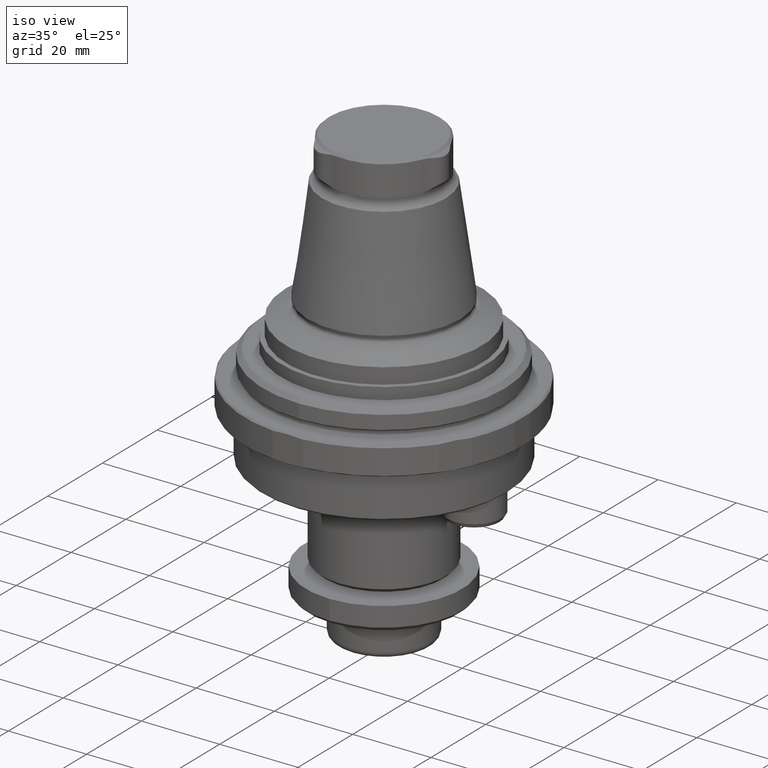
[diagram: clean part render]
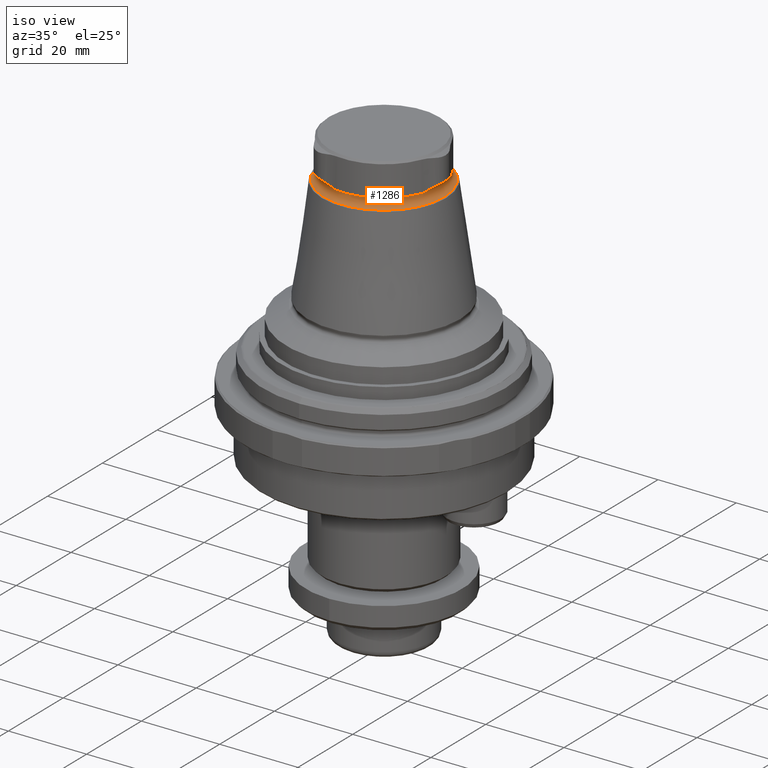
[diagram: same view with one face highlighted and labeled with its STEP entity id]
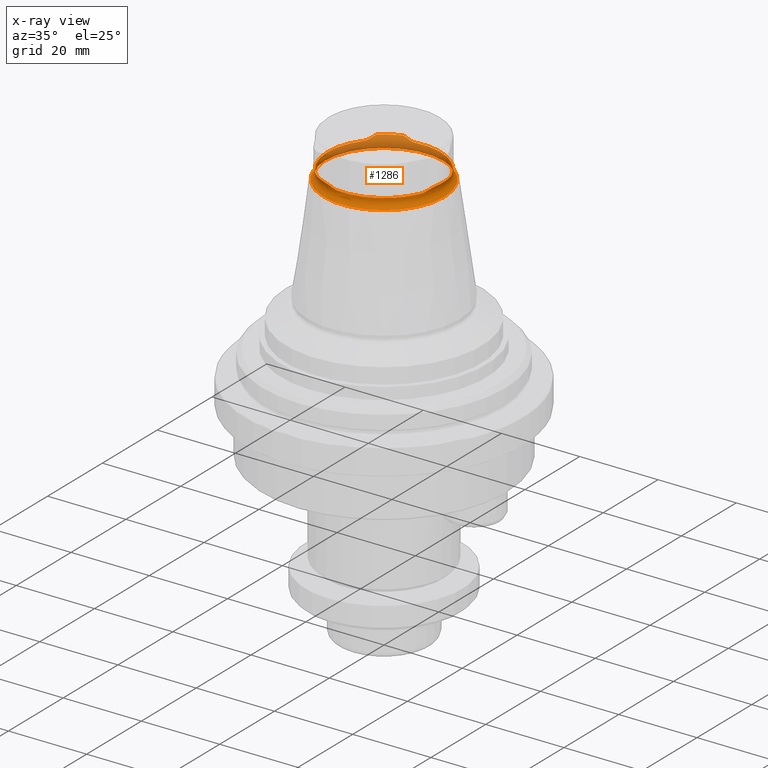
[diagram: x-ray of the same camera — body ghosted, the highlighted face saturated]
A machine part, iso view. The second image highlights one B-rep face of the part: STEP entity #1286.
The next image is the same camera in x-ray: the body ghosted, the highlighted face saturated — about 37% of this face is hidden behind the body in this view.
In plain terms, the highlighted toroidal blend (fillet) surface has major radius 16.4 mm and minor (blend) radius 2 mm.
Its self-contained STEP definition (entity closure, byte-faithful):
#26=TOROIDAL_SURFACE('',#1460,16.4,2.);
#134=B_SPLINE_CURVE_WITH_KNOTS('',3,(#2261,#2262,#2263,#2264,#2265),
 .UNSPECIFIED.,.F.,.F.,(4,1,4),(2.3253959497874E-7,0.0015389400940897,0.00307764764858442),
 .UNSPECIFIED.);
#136=B_SPLINE_CURVE_WITH_KNOTS('',3,(#2279,#2280,#2281,#2282),
 .UNSPECIFIED.,.F.,.F.,(4,4),(0.00622155540779305,0.00622754949232765),
 .UNSPECIFIED.);
#137=B_SPLINE_CURVE_WITH_KNOTS('',3,(#2283,#2284,#2285,#2286),
 .UNSPECIFIED.,.F.,.F.,(4,4),(2.12211647205004E-7,6.21085284075914E-6),
 .UNSPECIFIED.);
#138=B_SPLINE_CURVE_WITH_KNOTS('',3,(#2290,#2291,#2292,#2293,#2294),
 .UNSPECIFIED.,.F.,.F.,(4,1,4),(1.98303930943962E-7,0.00153324672622609,
0.00306629514852124),.UNSPECIFIED.);
#139=B_SPLINE_CURVE_WITH_KNOTS('',3,(#2302,#2303,#2304,#2305,#2306),
 .UNSPECIFIED.,.F.,.F.,(4,1,4),(2.57032852111142E-7,0.00153896376344887,
0.00307767049404562),.UNSPECIFIED.);
#141=B_SPLINE_CURVE_WITH_KNOTS('',3,(#2320,#2321,#2322,#2323),
 .UNSPECIFIED.,.F.,.F.,(4,4),(6.19763373146291E-7,6.61840456632411E-6),
 .UNSPECIFIED.);
#142=B_SPLINE_CURVE_WITH_KNOTS('',3,(#2324,#2325,#2326,#2327),
 .UNSPECIFIED.,.F.,.F.,(4,4),(2.57948989344727E-7,6.25659018116285E-6),
 .UNSPECIFIED.);
#143=B_SPLINE_CURVE_WITH_KNOTS('',3,(#2331,#2332,#2333,#2334,#2335),
 .UNSPECIFIED.,.F.,.F.,(4,1,4),(2.11842187331082E-7,0.0015332601506275,
0.00306630845906767),.UNSPECIFIED.);
#144=B_SPLINE_CURVE_WITH_KNOTS('',3,(#2343,#2344,#2345,#2346,#2347),
 .UNSPECIFIED.,.F.,.F.,(4,1,4),(2.11460452280959E-7,0.00153891768004006,
0.00307762389962784),.UNSPECIFIED.);
#146=B_SPLINE_CURVE_WITH_KNOTS('',3,(#2361,#2362,#2363,#2364),
 .UNSPECIFIED.,.F.,.F.,(4,4),(0.00622861034463853,0.00623459694737963),
 .UNSPECIFIED.);
#147=B_SPLINE_CURVE_WITH_KNOTS('',3,(#2365,#2366,#2367,#2368),
 .UNSPECIFIED.,.F.,.F.,(4,4),(2.33364163493041E-7,6.23200535773875E-6),
 .UNSPECIFIED.);
#148=B_SPLINE_CURVE_WITH_KNOTS('',3,(#2370,#2371,#2372,#2373,#2374),
 .UNSPECIFIED.,.F.,.F.,(4,1,4),(2.49139269261998E-7,0.00153329683370227,
0.00306634452813528),.UNSPECIFIED.);
#460=ORIENTED_EDGE('',*,*,#682,.F.);
#461=ORIENTED_EDGE('',*,*,#681,.T.);
#462=ORIENTED_EDGE('',*,*,#680,.T.);
#463=ORIENTED_EDGE('',*,*,#676,.T.);
#464=ORIENTED_EDGE('',*,*,#679,.T.);
#465=ORIENTED_EDGE('',*,*,#675,.T.);
#466=ORIENTED_EDGE('',*,*,#673,.T.);
#467=ORIENTED_EDGE('',*,*,#671,.T.);
#468=ORIENTED_EDGE('',*,*,#669,.T.);
#469=ORIENTED_EDGE('',*,*,#665,.T.);
#470=ORIENTED_EDGE('',*,*,#668,.T.);
#471=ORIENTED_EDGE('',*,*,#664,.T.);
#472=ORIENTED_EDGE('',*,*,#662,.T.);
#473=ORIENTED_EDGE('',*,*,#660,.T.);
#474=ORIENTED_EDGE('',*,*,#658,.T.);
#475=ORIENTED_EDGE('',*,*,#654,.T.);
#476=ORIENTED_EDGE('',*,*,#657,.T.);
#477=ORIENTED_EDGE('',*,*,#653,.T.);
#478=ORIENTED_EDGE('',*,*,#651,.T.);
#651=EDGE_CURVE('',#792,#793,#887,.T.);
#653=EDGE_CURVE('',#794,#792,#134,.T.);
#654=EDGE_CURVE('',#795,#796,#888,.T.);
#657=EDGE_CURVE('',#796,#794,#136,.T.);
#658=EDGE_CURVE('',#797,#795,#137,.T.);
#660=EDGE_CURVE('',#798,#797,#138,.T.);
#662=EDGE_CURVE('',#799,#798,#889,.T.);
#664=EDGE_CURVE('',#800,#799,#139,.T.);
#665=EDGE_CURVE('',#801,#802,#890,.T.);
#668=EDGE_CURVE('',#802,#800,#141,.T.);
#669=EDGE_CURVE('',#803,#801,#142,.T.);
#671=EDGE_CURVE('',#804,#803,#143,.T.);
#673=EDGE_CURVE('',#805,#804,#891,.T.);
#675=EDGE_CURVE('',#806,#805,#144,.T.);
#676=EDGE_CURVE('',#807,#808,#892,.T.);
#679=EDGE_CURVE('',#808,#806,#146,.T.);
#680=EDGE_CURVE('',#809,#807,#147,.T.);
#681=EDGE_CURVE('',#793,#809,#148,.T.);
#682=EDGE_CURVE('',#810,#810,#893,.T.);
#792=VERTEX_POINT('',#2254);
#793=VERTEX_POINT('',#2256);
#794=VERTEX_POINT('',#2260);
#795=VERTEX_POINT('',#2268);
#796=VERTEX_POINT('',#2269);
#797=VERTEX_POINT('',#2278);
#798=VERTEX_POINT('',#2289);
#799=VERTEX_POINT('',#2297);
#800=VERTEX_POINT('',#2301);
#801=VERTEX_POINT('',#2309);
#802=VERTEX_POINT('',#2310);
#803=VERTEX_POINT('',#2319);
#804=VERTEX_POINT('',#2330);
#805=VERTEX_POINT('',#2338);
#806=VERTEX_POINT('',#2342);
#807=VERTEX_POINT('',#2350);
#808=VERTEX_POINT('',#2351);
#809=VERTEX_POINT('',#2360);
#810=VERTEX_POINT('',#2377);
#887=CIRCLE('',#1440,14.5);
#888=CIRCLE('',#1443,15.1144247806269);
#889=CIRCLE('',#1447,14.5);
#890=CIRCLE('',#1450,15.1144247806269);
#891=CIRCLE('',#1454,14.5);
#892=CIRCLE('',#1457,15.1144247806269);
#893=CIRCLE('',#1461,15.4);
#1012=EDGE_LOOP('',(#460));
#1013=EDGE_LOOP('',(#461,#462,#463,#464,#465,#466,#467,#468,#469,#470,#471,
#472,#473,#474,#475,#476,#477,#478));
#1148=FACE_BOUND('',#1012,.T.);
#1149=FACE_BOUND('',#1013,.T.);
#1286=ADVANCED_FACE('',(#1148,#1149),#26,.F.);
#1440=AXIS2_PLACEMENT_3D('',#2257,#1758,#1759);
#1443=AXIS2_PLACEMENT_3D('',#2267,#1765,#1766);
#1447=AXIS2_PLACEMENT_3D('',#2298,#1776,#1777);
#1450=AXIS2_PLACEMENT_3D('',#2308,#1783,#1784);
#1454=AXIS2_PLACEMENT_3D('',#2339,#1794,#1795);
#1457=AXIS2_PLACEMENT_3D('',#2349,#1801,#1802);
#1460=AXIS2_PLACEMENT_3D('',#2375,#1808,#1809);
#1461=AXIS2_PLACEMENT_3D('',#2376,#1810,#1811);
#1758=DIRECTION('',(1.09102105407346E-16,0.,-1.));
#1759=DIRECTION('',(-1.,0.,-1.09102105407346E-16));
#1765=DIRECTION('',(1.09102105407346E-16,0.,-1.));
#1766=DIRECTION('',(-1.,0.,-1.09102105407346E-16));
#1776=DIRECTION('',(1.09102105407346E-16,0.,-1.));
#1777=DIRECTION('',(-1.,0.,-1.09102105407346E-16));
#1783=DIRECTION('',(1.09102105407346E-16,0.,-1.));
#1784=DIRECTION('',(-1.,0.,-1.09102105407346E-16));
#1794=DIRECTION('',(1.09102105407346E-16,0.,-1.));
#1795=DIRECTION('',(-1.,0.,-1.09102105407346E-16));
#1801=DIRECTION('',(1.09102105407346E-16,0.,-1.));
#1802=DIRECTION('',(-1.,0.,-1.09102105407346E-16));
#1808=DIRECTION('',(1.09102105407346E-16,0.,-1.));
#1809=DIRECTION('',(-1.,0.,-1.09102105407346E-16));
#1810=DIRECTION('',(1.09102105407346E-16,0.,-1.));
#1811=DIRECTION('',(-1.,0.,-1.09102105407346E-16));
#2254=CARTESIAN_POINT('',(-11.4297801108244,-8.92245070696403,46.6780044888596));
#2256=CARTESIAN_POINT('',(-11.4297801108241,8.9224507069638,46.6780044888626));
#2257=CARTESIAN_POINT('',(-6.81342429889938E-17,0.,46.6780044888626));
#2260=CARTESIAN_POINT('',(-9.89976921547151,-11.4179951797516,47.5836531554481));
#2261=CARTESIAN_POINT('',(-9.89976921547144,-11.4179951797515,47.5836531554482));
#2262=CARTESIAN_POINT('',(-10.1059201587805,-10.976867121887,47.4167929741393));
#2263=CARTESIAN_POINT('',(-10.554358847367,-10.1424507187892,47.0361424330323));
#2264=CARTESIAN_POINT('',(-11.1105799262753,-9.33135046337941,46.678004488855));
#2265=CARTESIAN_POINT('',(-11.4297801108226,-8.92245070696346,46.6780044888548));
#2267=CARTESIAN_POINT('',(8.08806171588008E-16,0.,47.5855935752607));
#2268=CARTESIAN_POINT('',(-4.94404449936054,-14.2829359880093,47.5855935752607));
#2269=CARTESIAN_POINT('',(-9.89736315656176,-11.4231361278925,47.5855935752607));
#2278=CARTESIAN_POINT('',(-4.93838927821655,-14.2824492220777,47.5836531554483));
#2279=CARTESIAN_POINT('',(-9.89736315656177,-11.4231361278925,47.5855935752607));
#2280=CARTESIAN_POINT('',(-9.89816627519141,-11.4214226642801,47.5849482311036));
#2281=CARTESIAN_POINT('',(-9.89896840472513,-11.4197087789406,47.5843013379119));
#2282=CARTESIAN_POINT('',(-9.89976921547151,-11.4179951797516,47.5836531554482));
#2283=CARTESIAN_POINT('',(-4.93838927821656,-14.2824492220777,47.5836531554483));
#2284=CARTESIAN_POINT('',(-4.9402737822032,-14.2826125059965,47.5843013648048));
#2285=CARTESIAN_POINT('',(-4.94215885657603,-14.2827747619096,47.5849481693393));
#2286=CARTESIAN_POINT('',(-4.94404449936055,-14.2829359880093,47.5855935752607));
#2289=CARTESIAN_POINT('',(-2.01217892083192,-14.3597052891256,46.6780044888626));
#2290=CARTESIAN_POINT('',(-2.01217892083226,-14.3597052891256,46.6780044888607));
#2291=CARTESIAN_POINT('',(-2.52756176568156,-14.2874863629231,46.6780044888607));
#2292=CARTESIAN_POINT('',(-3.50119874426198,-14.21182776097,47.0344657481654));
#2293=CARTESIAN_POINT('',(-4.45266532455191,-14.2403633940975,47.4165795840098));
#2294=CARTESIAN_POINT('',(-4.93838927821654,-14.2824492220777,47.5836531554483));
#2297=CARTESIAN_POINT('',(13.4419590316585,-5.43725458216201,46.6780044888644));
#2298=CARTESIAN_POINT('',(-6.81342429889938E-17,0.,46.6780044888626));
#2301=CARTESIAN_POINT('',(14.8381584936901,-2.86445404232643,47.5836531554491));
#2302=CARTESIAN_POINT('',(14.8381584936899,-2.86445404232644,47.5836531554493));
#2303=CARTESIAN_POINT('',(14.5592060014918,-3.26354982405128,47.4167930582311));
#2304=CARTESIAN_POINT('',(14.0607998071634,-4.06911687736587,47.0361429196281));
#2305=CARTESIAN_POINT('',(13.6364769061111,-4.95636827091442,46.6780044888611));
#2306=CARTESIAN_POINT('',(13.4419590316578,-5.43725458216119,46.6780044888609));
#2308=CARTESIAN_POINT('',(8.08806171588008E-16,0.,47.5855935752607));
#2309=CARTESIAN_POINT('',(14.8414076559227,2.85979986012107,47.5855935752607));
#2310=CARTESIAN_POINT('',(14.8414076559229,-2.85979986011975,47.5855935752607));
#2319=CARTESIAN_POINT('',(14.8381584936905,2.86445404232674,47.5836531554497));
#2320=CARTESIAN_POINT('',(14.8414076559229,-2.85979986011975,47.5855935752607));
#2321=CARTESIAN_POINT('',(14.8403252086262,-2.8613522616329,47.5849481693355));
#2322=CARTESIAN_POINT('',(14.8392421536976,-2.86290365597055,47.5843013648013));
#2323=CARTESIAN_POINT('',(14.83815849369,-2.86445404232647,47.5836531554492));
#2324=CARTESIAN_POINT('',(14.8381584936905,2.86445404232674,47.5836531554497));
#2325=CARTESIAN_POINT('',(14.8392421536979,2.86290365597116,47.5843013648016));
#2326=CARTESIAN_POINT('',(14.8403252086261,2.86135226163387,47.5849481693356));
#2327=CARTESIAN_POINT('',(14.8414076559227,2.85979986012107,47.5855935752607));
#2330=CARTESIAN_POINT('',(13.4419590316583,5.43725458216266,46.6780044888655));
#2331=CARTESIAN_POINT('',(13.4419590316583,5.43725458216266,46.6780044888655));
#2332=CARTESIAN_POINT('',(13.6371068531406,4.95481091839006,46.6780044888655));
#2333=CARTESIAN_POINT('',(14.0584032982658,4.07378667125626,47.034465720431));
#2334=CARTESIAN_POINT('',(14.5588491375802,3.26406038726913,47.4165795941159));
#2335=CARTESIAN_POINT('',(14.8381584936904,2.86445404232672,47.5836531554497));
#2338=CARTESIAN_POINT('',(-2.01217892083189,14.3597052891266,46.6780044888637));
#2339=CARTESIAN_POINT('',(-6.81342429889938E-17,0.,46.6780044888626));
#2342=CARTESIAN_POINT('',(-4.93838927821562,14.2824492220786,47.5836531554488));
#2343=CARTESIAN_POINT('',(-4.9383892782156,14.2824492220786,47.5836531554488));
#2344=CARTESIAN_POINT('',(-4.4532859997156,14.2404171728507,47.4167930765007));
#2345=CARTESIAN_POINT('',(-3.50644175510592,14.2115682769749,47.0361431562619));
#2346=CARTESIAN_POINT('',(-2.52589799078177,14.2877195023032,46.6780044888606));
#2347=CARTESIAN_POINT('',(-2.01217892083223,14.359705289126,46.6780044888606));
#2349=CARTESIAN_POINT('',(8.08806171588008E-16,0.,47.5855935752607));
#2350=CARTESIAN_POINT('',(-9.89736315656251,11.4231361278918,47.5855935752607));
#2351=CARTESIAN_POINT('',(-4.94404449935825,14.2829359880101,47.5855935752607));
#2360=CARTESIAN_POINT('',(-9.89976921547187,11.4179951797518,47.5836531554485));
#2361=CARTESIAN_POINT('',(-4.94404449935825,14.2829359880101,47.5855935752607));
#2362=CARTESIAN_POINT('',(-4.94215863661775,14.2827747431037,47.5849480940541));
#2363=CARTESIAN_POINT('',(-4.94027356222833,14.2826124869377,47.5843012891412));
#2364=CARTESIAN_POINT('',(-4.93838927821562,14.2824492220786,47.5836531554488));
#2365=CARTESIAN_POINT('',(-9.89976921547187,11.4179951797518,47.5836531554485));
#2366=CARTESIAN_POINT('',(-9.89896837150269,11.4197088500319,47.584301364803));
#2367=CARTESIAN_POINT('',(-9.89816635205895,11.4214225002832,47.5849481693375));
#2368=CARTESIAN_POINT('',(-9.89736315656252,11.4231361278918,47.5855935752607));
#2370=CARTESIAN_POINT('',(-11.429780110824,8.92245070696396,46.6780044888615));
#2371=CARTESIAN_POINT('',(-11.1095464122081,9.33267440888908,46.6780044888615));
#2372=CARTESIAN_POINT('',(-10.5572042888354,10.1380410971448,47.034465489677));
#2373=CARTESIAN_POINT('',(-10.1061838530726,10.9763028608225,47.4165795379234));
#2374=CARTESIAN_POINT('',(-9.89976921547183,11.4179951797517,47.5836531554485));
#2375=CARTESIAN_POINT('',(0.,0.,46.0535046890227));
#2376=CARTESIAN_POINT('',(1.16493068452602E-15,0.,44.3214538814539));
#2377=CARTESIAN_POINT('',(-15.4,0.,44.3214538814539));